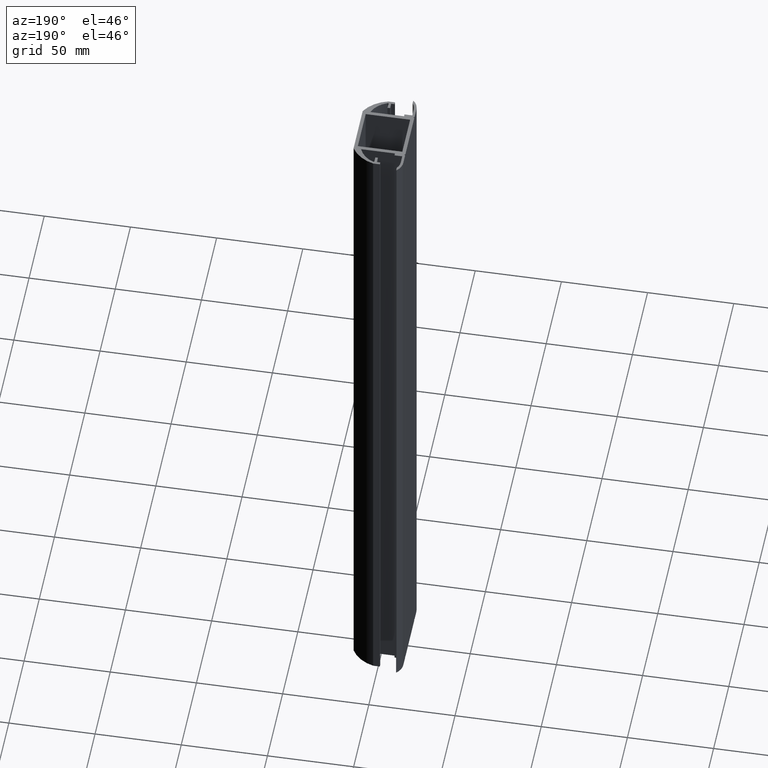
[diagram: clean part render]
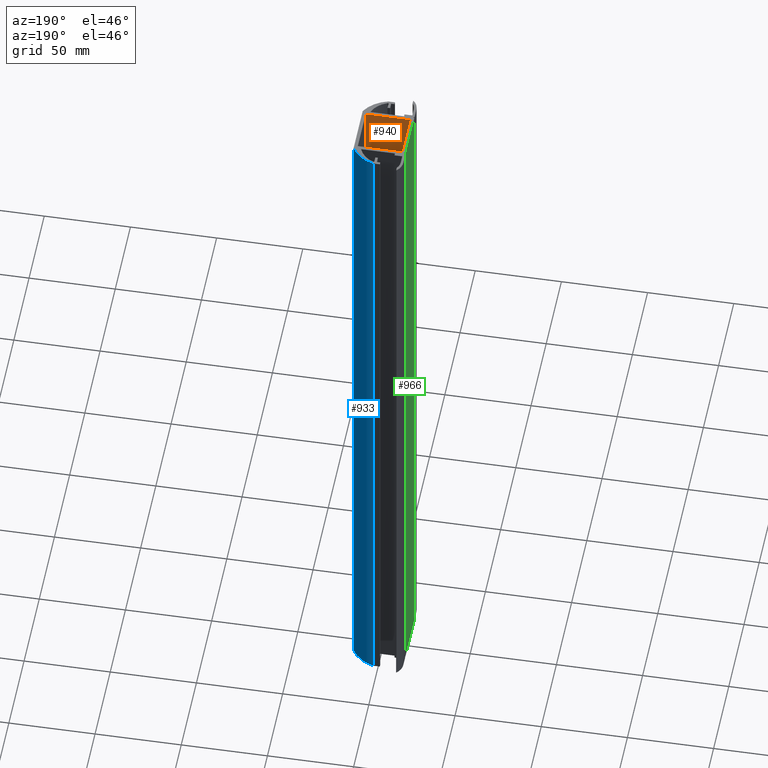
[diagram: same view with three faces highlighted in distinct colors, each labeled with its STEP entity id]
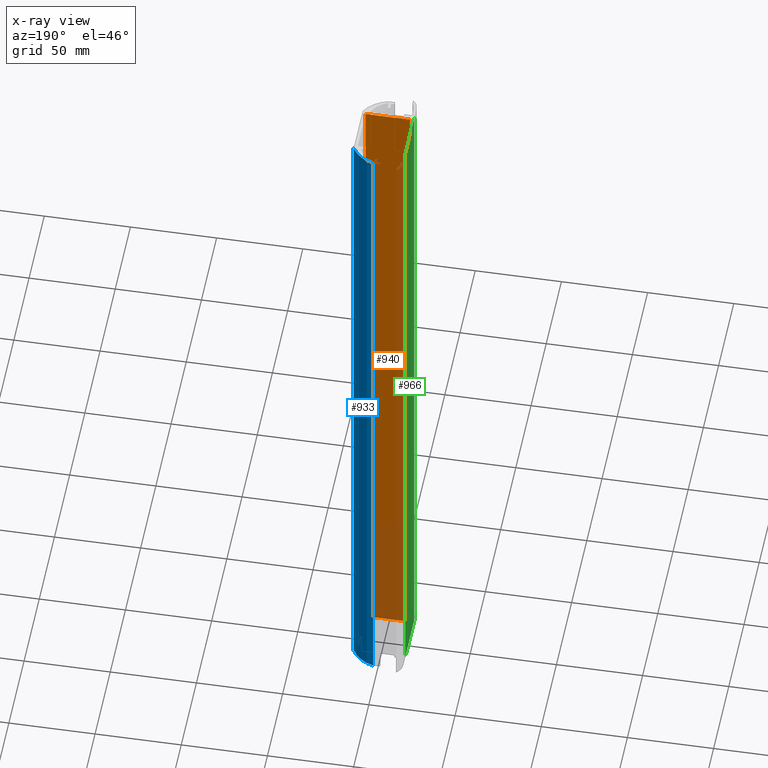
[diagram: x-ray of the same camera — body ghosted, the three highlighted faces saturated]
A machine part, auxiliary view with three faces highlighted in distinct colors.
The next image is the same camera in x-ray (body ghosted, the three faces saturated) — at least one of them is partly hidden behind the body in this view.
Their STEP definitions:

[orange] entity #940 — the highlighted planar face has unit normal (-0, -1, 0).
#28=PLANE('',#1019);
#70=FACE_OUTER_BOUND('',#118,.T.);
#118=EDGE_LOOP('',(#699,#700,#701,#702));
#191=LINE('',#1417,#309);
#192=LINE('',#1419,#310);
#193=LINE('',#1421,#311);
#194=LINE('',#1422,#312);
#309=VECTOR('',#1152,10.);
#310=VECTOR('',#1153,10.);
#311=VECTOR('',#1154,10.);
#312=VECTOR('',#1155,10.);
#441=VERTEX_POINT('',#1415);
#442=VERTEX_POINT('',#1416);
#443=VERTEX_POINT('',#1418);
#444=VERTEX_POINT('',#1420);
#547=EDGE_CURVE('',#441,#442,#191,.T.);
#548=EDGE_CURVE('',#443,#441,#192,.T.);
#549=EDGE_CURVE('',#444,#443,#193,.T.);
#550=EDGE_CURVE('',#444,#442,#194,.T.);
#699=ORIENTED_EDGE('',*,*,#547,.F.);
#700=ORIENTED_EDGE('',*,*,#548,.F.);
#701=ORIENTED_EDGE('',*,*,#549,.F.);
#702=ORIENTED_EDGE('',*,*,#550,.T.);
#940=ADVANCED_FACE('',(#70),#28,.F.);
#1019=AXIS2_PLACEMENT_3D('',#1414,#1150,#1151);
#1150=DIRECTION('center_axis',(-1.72127600734292E-16,-1.,0.));
#1151=DIRECTION('ref_axis',(1.,-1.72127600734292E-16,0.));
#1152=DIRECTION('',(-1.,1.72127600734292E-16,0.));
#1153=DIRECTION('',(0.,0.,1.));
#1154=DIRECTION('',(1.,-1.72127600734292E-16,0.));
#1155=DIRECTION('',(0.,0.,1.));
#1414=CARTESIAN_POINT('Origin',(-12.8999999972105,-12.9000000015065,0.));
#1415=CARTESIAN_POINT('',(12.9000000002095,-12.9000000015065,413.));
#1416=CARTESIAN_POINT('',(-12.8999999972105,-12.9000000015065,413.));
#1417=CARTESIAN_POINT('',(-6.44999999860524,-12.9000000015065,413.));
#1418=CARTESIAN_POINT('',(12.9000000002095,-12.9000000015065,0.));
#1419=CARTESIAN_POINT('',(12.9000000002095,-12.9000000015065,0.));
#1420=CARTESIAN_POINT('',(-12.8999999972105,-12.9000000015065,0.));
#1421=CARTESIAN_POINT('',(-6.44999999860524,-12.9000000015065,0.));
#1422=CARTESIAN_POINT('',(-12.8999999972105,-12.9000000015065,0.));

[blue] entity #933 — the highlighted cylindrical surface (edge-blend (fillet) strip) has radius 20.5913 mm, axis along (0, 0, 1).
#63=FACE_OUTER_BOUND('',#111,.T.);
#111=EDGE_LOOP('',(#671,#672,#673,#674));
#172=LINE('',#1377,#290);
#173=LINE('',#1380,#291);
#290=VECTOR('',#1117,10.);
#291=VECTOR('',#1120,10.);
#395=CIRCLE('',#1011,20.5912602799149);
#396=CIRCLE('',#1012,20.5912602799149);
#427=VERTEX_POINT('',#1373);
#428=VERTEX_POINT('',#1374);
#429=VERTEX_POINT('',#1376);
#430=VERTEX_POINT('',#1378);
#526=EDGE_CURVE('',#427,#428,#395,.T.);
#527=EDGE_CURVE('',#429,#427,#172,.T.);
#528=EDGE_CURVE('',#430,#429,#396,.T.);
#529=EDGE_CURVE('',#430,#428,#173,.T.);
#671=ORIENTED_EDGE('',*,*,#526,.F.);
#672=ORIENTED_EDGE('',*,*,#527,.F.);
#673=ORIENTED_EDGE('',*,*,#528,.F.);
#674=ORIENTED_EDGE('',*,*,#529,.T.);
#918=CYLINDRICAL_SURFACE('',#1010,20.5912602799149);
#933=ADVANCED_FACE('',(#63),#918,.T.);
#1010=AXIS2_PLACEMENT_3D('',#1372,#1113,#1114);
#1011=AXIS2_PLACEMENT_3D('',#1375,#1115,#1116);
#1012=AXIS2_PLACEMENT_3D('',#1379,#1118,#1119);
#1113=DIRECTION('center_axis',(0.,0.,1.));
#1114=DIRECTION('ref_axis',(0.874157276121647,0.485642931178435,0.));
#1115=DIRECTION('center_axis',(0.,0.,1.));
#1116=DIRECTION('ref_axis',(0.874157276121647,0.485642931178435,0.));
#1117=DIRECTION('',(0.,0.,1.));
#1118=DIRECTION('center_axis',(0.,0.,-1.));
#1119=DIRECTION('ref_axis',(0.874157276121647,0.485642931178435,0.));
#1120=DIRECTION('',(0.,0.,1.));
#1372=CARTESIAN_POINT('Origin',(-2.99999999820223,4.99999999670452,0.));
#1373=CARTESIAN_POINT('',(15.,14.9999999957005,413.));
#1374=CARTESIAN_POINT('',(1.89897948688183,24.9999999947027,413.));
#1375=CARTESIAN_POINT('Origin',(-2.99999999820223,4.99999999670452,413.));
#1376=CARTESIAN_POINT('',(15.,14.9999999957005,0.));
#1377=CARTESIAN_POINT('',(15.,14.9999999957005,0.));
#1378=CARTESIAN_POINT('',(1.89897948688183,24.9999999947027,0.));
#1379=CARTESIAN_POINT('Origin',(-2.99999999820223,4.99999999670452,0.));
#1380=CARTESIAN_POINT('',(1.89897948688183,24.9999999947027,0.));

[green] entity #966 — the highlighted planar face has unit normal (-1, 0, 0).
#48=PLANE('',#1057);
#96=FACE_OUTER_BOUND('',#144,.T.);
#144=EDGE_LOOP('',(#803,#804,#805,#806));
#244=LINE('',#1539,#362);
#253=LINE('',#1559,#371);
#261=LINE('',#1583,#379);
#262=LINE('',#1584,#380);
#362=VECTOR('',#1259,10.);
#371=VECTOR('',#1274,10.);
#379=VECTOR('',#1298,10.);
#380=VECTOR('',#1299,10.);
#482=VERTEX_POINT('',#1533);
#484=VERTEX_POINT('',#1537);
#491=VERTEX_POINT('',#1556);
#492=VERTEX_POINT('',#1558);
#608=EDGE_CURVE('',#482,#484,#244,.T.);
#617=EDGE_CURVE('',#492,#491,#253,.T.);
#629=EDGE_CURVE('',#492,#484,#261,.T.);
#630=EDGE_CURVE('',#491,#482,#262,.T.);
#803=ORIENTED_EDGE('',*,*,#608,.T.);
#804=ORIENTED_EDGE('',*,*,#629,.F.);
#805=ORIENTED_EDGE('',*,*,#617,.T.);
#806=ORIENTED_EDGE('',*,*,#630,.T.);
#966=ADVANCED_FACE('',(#96),#48,.T.);
#1057=AXIS2_PLACEMENT_3D('',#1582,#1296,#1297);
#1259=DIRECTION('',(0.,0.,-1.));
#1274=DIRECTION('',(0.,0.,1.));
#1296=DIRECTION('center_axis',(-1.,7.93016446160826E-17,0.));
#1297=DIRECTION('ref_axis',(-7.93016446160826E-17,-1.,0.));
#1298=DIRECTION('',(7.93016446160826E-17,1.,0.));
#1299=DIRECTION('',(7.93016446160826E-17,1.,0.));
#1533=CARTESIAN_POINT('',(-15.,14.4994721730083,413.));
#1537=CARTESIAN_POINT('',(-14.9999999970006,14.4994721760109,0.));
#1539=CARTESIAN_POINT('',(-15.,14.4994721730083,0.));
#1556=CARTESIAN_POINT('',(-15.,-14.494833646475,413.));
#1558=CARTESIAN_POINT('',(-14.9999999970006,-14.4948336495054,0.));
#1559=CARTESIAN_POINT('',(-15.,-14.494833646475,0.));
#1582=CARTESIAN_POINT('Origin',(-15.,28.,0.));
#1583=CARTESIAN_POINT('',(-15.,14.,0.));
#1584=CARTESIAN_POINT('',(-15.,14.,413.));